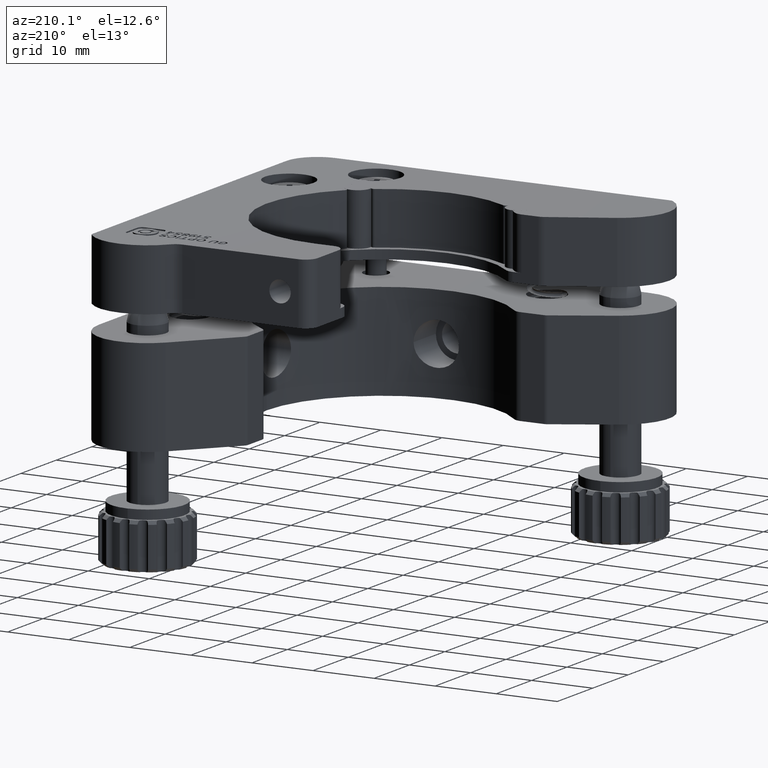
[diagram: clean part render]
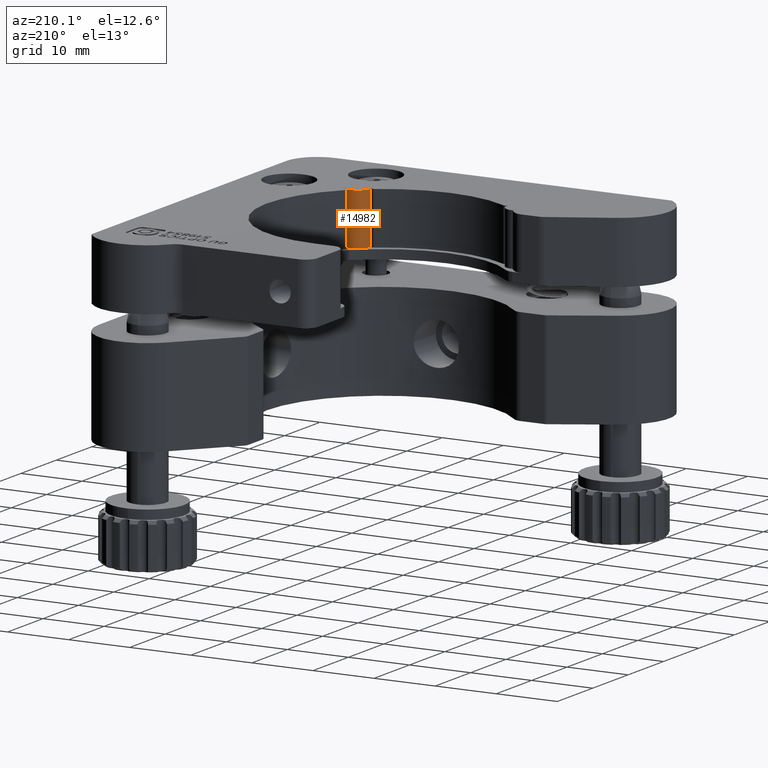
[diagram: same view with one face highlighted and labeled with its STEP entity id]
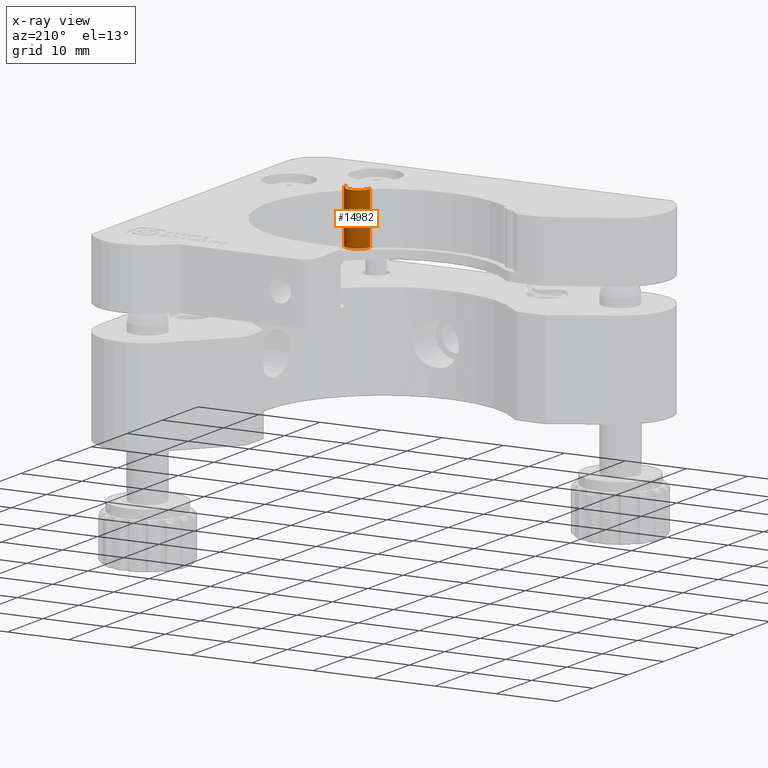
[diagram: x-ray of the same camera — body ghosted, the highlighted face saturated]
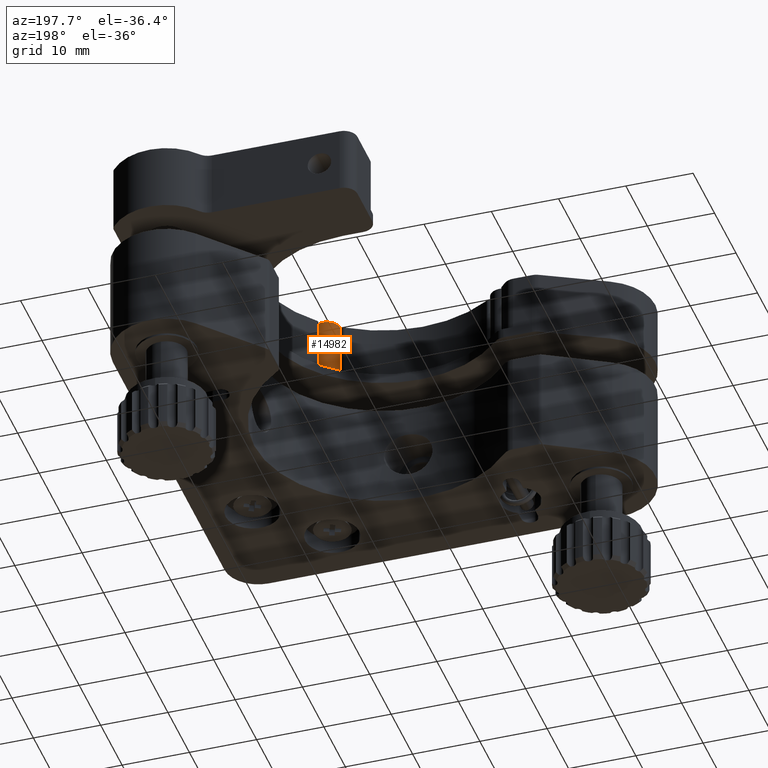
[diagram: same view with one face highlighted and labeled with its STEP entity id]
A machine part, auxiliary view. The second image highlights one B-rep face of the part: STEP entity #14982.
The next image is the same camera in x-ray: the body ghosted, the highlighted face saturated — about 0% of this face is hidden behind the body in this view.
A second angle (auxiliary view) of the same face is appended — the face is thin or edge-on in the first view.
In plain terms, the highlighted cylindrical surface (edge-blend (fillet) strip) has radius 2 mm, axis along (0, 0, 1).
Its self-contained STEP definition (entity closure, byte-faithful):
#395 = DIRECTION ( 'NONE',  ( 0.0000000000000000000, 0.0000000000000000000, 1.000000000000000000 ) ) ;
#1559 = AXIS2_PLACEMENT_3D ( 'NONE', #8265, #28015, #11109 ) ;
#4175 = LINE ( 'NONE', #8821, #33358 ) ;
#5280 = EDGE_CURVE ( 'NONE', #8169, #22014, #21582, .T. ) ;
#5351 = AXIS2_PLACEMENT_3D ( 'NONE', #13008, #30959, #18177 ) ;
#6491 = DIRECTION ( 'NONE',  ( 0.0000000000000000000, 0.0000000000000000000, 1.000000000000000000 ) ) ;
#7435 = AXIS2_PLACEMENT_3D ( 'NONE', #32432, #18388, #29724 ) ;
#8169 = VERTEX_POINT ( 'NONE', #8837 ) ;
#8265 = CARTESIAN_POINT ( 'NONE',  ( -18.82285400142591000, 16.29608891606097000, 30.00000000000000400 ) ) ;
#8821 = CARTESIAN_POINT ( 'NONE',  ( -16.82285400142590600, 16.29608891606097000, 21.50000000000000000 ) ) ;
#8837 = CARTESIAN_POINT ( 'NONE',  ( -16.82285400142590600, 16.29608891606097000, 21.50000000000000000 ) ) ;
#9615 = EDGE_LOOP ( 'NONE', ( #10360, #28044, #27578, #18531 ) ) ;
#9702 = CARTESIAN_POINT ( 'NONE',  ( -16.82285400142590600, 16.29608891606097000, 30.00000000000000400 ) ) ;
#10360 = ORIENTED_EDGE ( 'NONE', *, *, #5280, .T. ) ;
#11109 = DIRECTION ( 'NONE',  ( 1.000000000000000000, 0.0000000000000000000, 0.0000000000000000000 ) ) ;
#11493 = CIRCLE ( 'NONE', #1559, 2.000000000000001800 ) ;
#11832 = CYLINDRICAL_SURFACE ( 'NONE', #7435, 2.000000000000001800 ) ;
#13008 = CARTESIAN_POINT ( 'NONE',  ( -18.82285400142591000, 16.29608891606097000, 21.50000000000000000 ) ) ;
#13482 = VERTEX_POINT ( 'NONE', #9702 ) ;
#13583 = LINE ( 'NONE', #23459, #27682 ) ;
#14982 = ADVANCED_FACE ( 'NONE', ( #22456 ), #11832, .T. ) ;
#16636 = VERTEX_POINT ( 'NONE', #32407 ) ;
#18177 = DIRECTION ( 'NONE',  ( 1.000000000000000000, 0.0000000000000000000, 0.0000000000000000000 ) ) ;
#18353 = EDGE_CURVE ( 'NONE', #22014, #16636, #13583, .T. ) ;
#18388 = DIRECTION ( 'NONE',  ( 0.0000000000000000000, 0.0000000000000000000, 1.000000000000000000 ) ) ;
#18531 = ORIENTED_EDGE ( 'NONE', *, *, #21972, .F. ) ;
#21582 = CIRCLE ( 'NONE', #5351, 2.000000000000001800 ) ;
#21972 = EDGE_CURVE ( 'NONE', #8169, #13482, #4175, .T. ) ;
#22014 = VERTEX_POINT ( 'NONE', #25844 ) ;
#22456 = FACE_OUTER_BOUND ( 'NONE', #9615, .T. ) ;
#23459 = CARTESIAN_POINT ( 'NONE',  ( -20.82285400142591000, 16.29608891606097000, 21.50000000000000000 ) ) ;
#25844 = CARTESIAN_POINT ( 'NONE',  ( -20.82285400142591000, 16.29608891606097000, 21.50000000000000000 ) ) ;
#26677 = EDGE_CURVE ( 'NONE', #13482, #16636, #11493, .T. ) ;
#27578 = ORIENTED_EDGE ( 'NONE', *, *, #26677, .F. ) ;
#27682 = VECTOR ( 'NONE', #6491, 1000.000000000000000 ) ;
#28015 = DIRECTION ( 'NONE',  ( 0.0000000000000000000, 0.0000000000000000000, 1.000000000000000000 ) ) ;
#28044 = ORIENTED_EDGE ( 'NONE', *, *, #18353, .T. ) ;
#29724 = DIRECTION ( 'NONE',  ( 1.000000000000000000, 0.0000000000000000000, 0.0000000000000000000 ) ) ;
#30959 = DIRECTION ( 'NONE',  ( 0.0000000000000000000, 0.0000000000000000000, 1.000000000000000000 ) ) ;
#32407 = CARTESIAN_POINT ( 'NONE',  ( -20.82285400142591000, 16.29608891606097000, 30.00000000000000400 ) ) ;
#32432 = CARTESIAN_POINT ( 'NONE',  ( -18.82285400142591000, 16.29608891606097000, 21.50000000000000000 ) ) ;
#33358 = VECTOR ( 'NONE', #395, 1000.000000000000000 ) ;